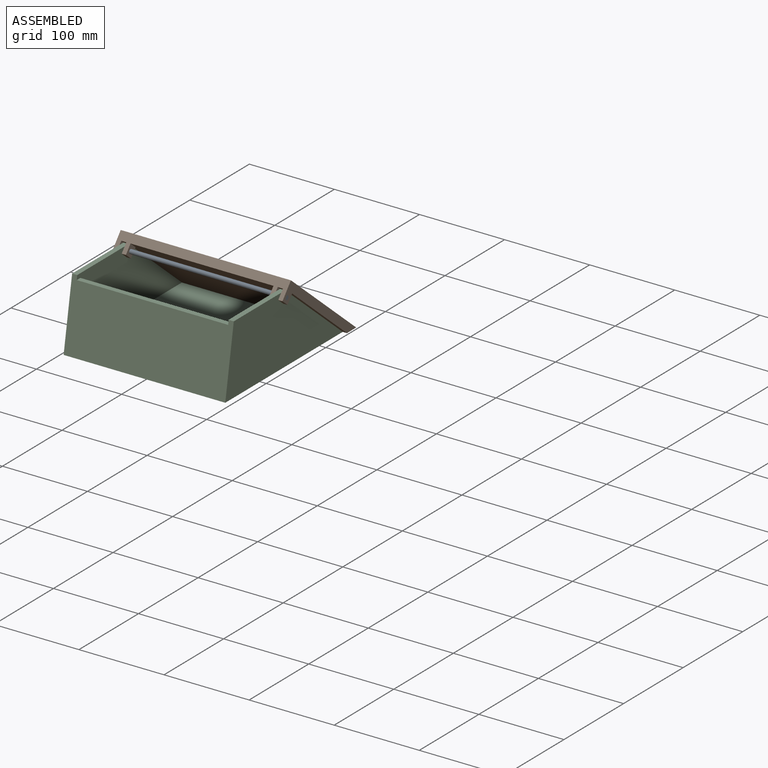
[diagram: assembled view]
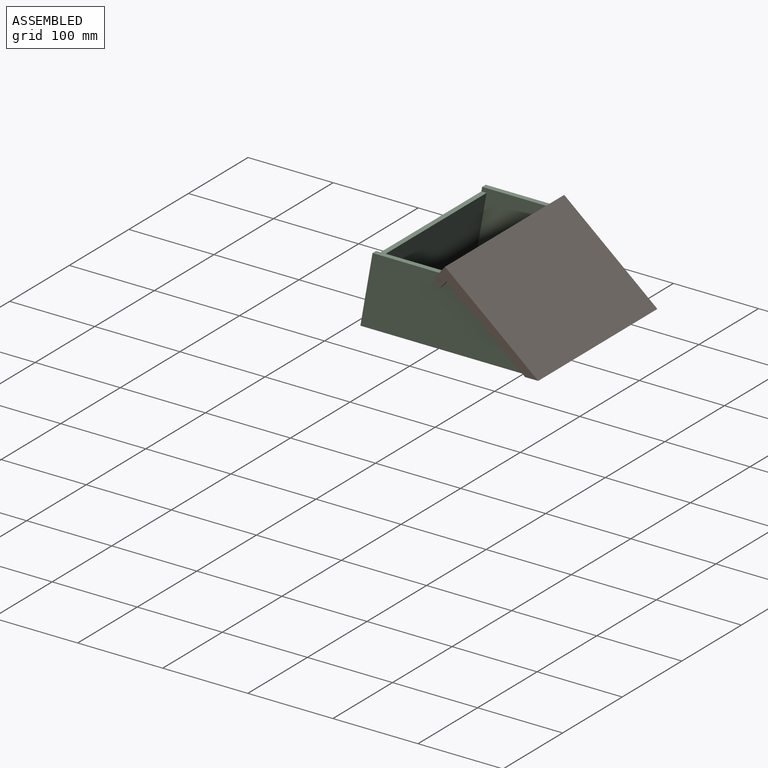
[diagram: assembled view, second angle]
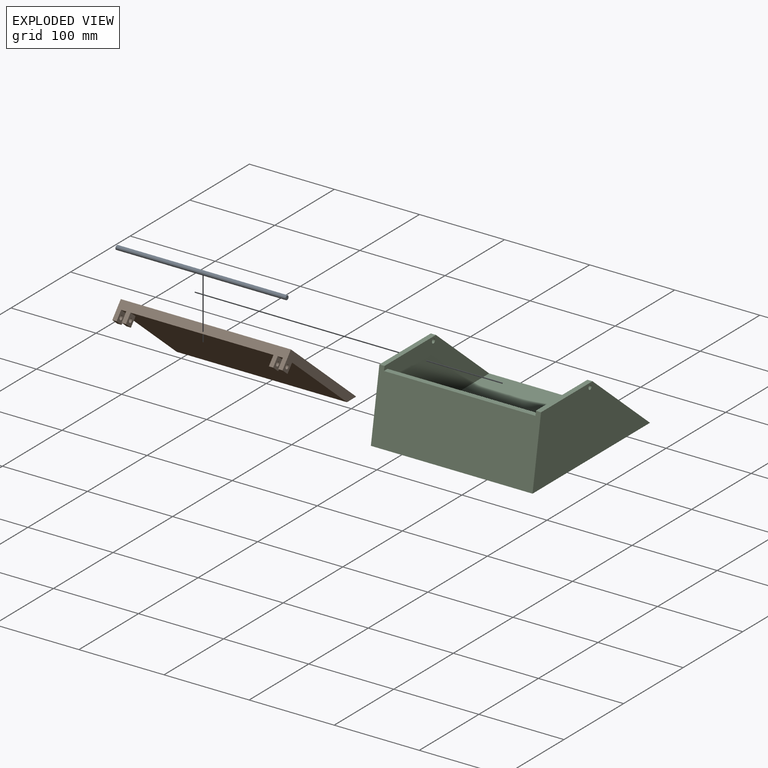
[diagram: exploded view]
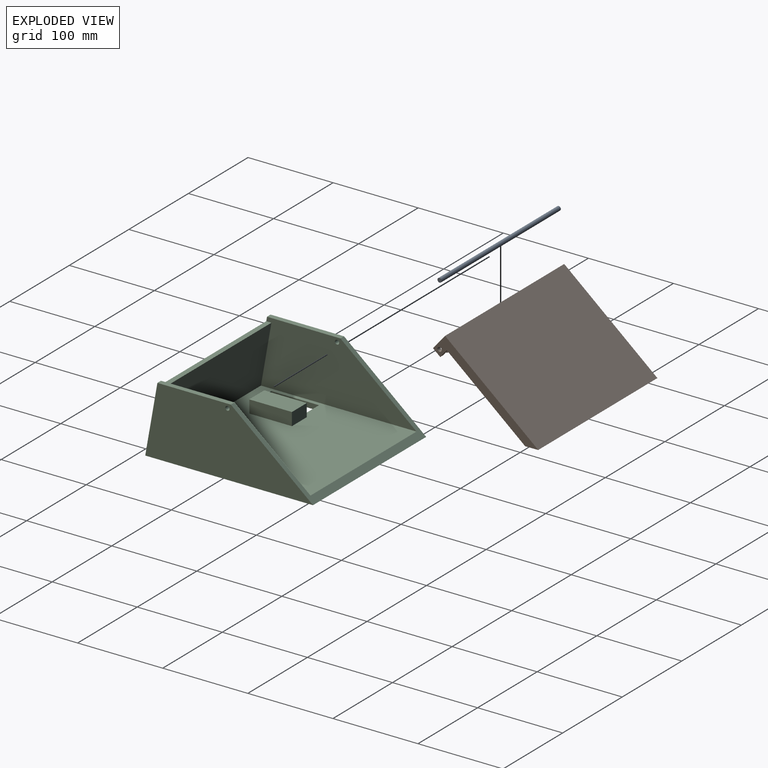
[diagram: exploded view, second angle]
ASSEMBLY  parts=3 mates=2
PART A: 3 faces, bbox 200x5x5 mm
  f0: plane 5x5mm, normal (1,0,0), area 19.6mm2, adj f1
  f1: cylinder r=2.5mm len=200mm, axis (-1,0,0), area 3141.6mm2, adj f0,f2
  f2: plane 5x5mm, normal (-1,0,0), area 19.6mm2, adj f1
PART B: 24 faces, bbox 200x123.7x92 mm
  f0: plane 9.19x7.71mm, normal (0,0.77,-0.64), area 60mm2, adj f6,f12,f14,f22
  f1: plane 8.43x7.07mm, normal (0,-0.64,-0.77), area 55mm2, adj f7,f10,f11,f23
  f2: plane 9.19x7.71mm, normal (0,0.77,-0.64), area 60mm2, adj f6,f17,f19,f21
  f3: plane 8.43x7.07mm, normal (0,-0.64,-0.77), area 55mm2, adj f7,f15,f16,f20
  f4: cylinder r=2.5mm len=5mm, axis (-1,0,0), area 78.5mm2, adj f10,f23
  f5: cylinder r=2.5mm len=5mm, axis (1,0,0), area 78.5mm2, adj f19,f21
  f6: plane 200x100.55mm, normal (0,-0.64,-0.77), area 26032.7mm2, adj f0,f2,f7,f8,f10,f11,f14,f15
  f7: plane 200x16.85mm, normal (0,-0.77,0.64), area 2240mm2, adj f1,f3,f6,f9,f10,f12,f14,f15
  f8: plane 200x15.4mm, normal (0,0.01,-1), area 3079.5mm2, adj f6,f9,f14,f19
  f9: plane 200x109.52mm, normal (0,0.64,0.77), area 28594.4mm2, adj f7,f8,f14,f19
  f10: plane 16.26x16.14mm, normal (-1,0,0), area 112.4mm2, adj f1,f4,f6,f7,f11
  f11: plane 9.19x7.71mm, normal (0,0.77,-0.64), area 60mm2, adj f1,f6,f10,f23
  f12: plane 8.43x7.07mm, normal (0,-0.64,-0.77), area 55mm2, adj f0,f7,f14,f22
  f13: cylinder r=2.5mm len=5mm, axis (-1,0,0), area 78.5mm2, adj f14,f22
  f14: plane 123.66x92.04mm, normal (1,0,0), area 1483.5mm2, adj f0,f6,f7,f8,f9,f12,f13
  f15: plane 16.26x16.14mm, normal (1,0,0), area 112.4mm2, adj f3,f6,f7,f16,f18
  f16: plane 9.19x7.71mm, normal (0,0.77,-0.64), area 60mm2, adj f3,f6,f15,f20
  f17: plane 8.43x7.07mm, normal (0,-0.64,-0.77), area 55mm2, adj f2,f7,f19,f21
  f18: cylinder r=2.5mm len=5mm, axis (1,0,0), area 78.5mm2, adj f15,f20
  f19: plane 123.66x92.04mm, normal (-1,0,0), area 1483.5mm2, adj f2,f5,f6,f7,f8,f9,f17
  f20: plane 16.26x16.14mm, normal (-1,0,0), area 112.4mm2, adj f3,f6,f7,f16,f18
  f21: plane 16.26x16.14mm, normal (1,0,0), area 112.4mm2, adj f2,f5,f6,f7,f17
  f22: plane 16.26x16.14mm, normal (-1,0,0), area 112.4mm2, adj f0,f6,f7,f12,f13
  f23: plane 16.26x16.14mm, normal (1,0,0), area 112.4mm2, adj f1,f4,f6,f7,f11
PART C: 30 faces, bbox 190x197.2x81 mm
  f0: plane 182.85x178mm, normal (0,0,1), area 26799.2mm2, adj f5,f7,f8,f9,f12,f13,f14,f15
  f1: plane 197.15x190mm, normal (0,0,-1), area 34210.6mm2, adj f3,f4,f5,f6,f12,f13,f14,f15
  f2: plane 178x6.09mm, normal (0,0,1), area 1084.5mm2, adj f3,f7,f8,f9
  f3: plane 190x81mm, normal (0,-0.98,0.17), area 14723.7mm2, adj f1,f2,f4,f6,f7,f9,f10,f11
  f4: plane 197.15x81mm, normal (1,0,0), area 11461.6mm2, adj f1,f3,f5,f11,f29
  f5: plane 190x96.53mm, normal (0,0.64,0.77), area 3173.7mm2, adj f0,f1,f4,f6,f7,f9,f10,f11
  f6: plane 197.15x81mm, normal (-1,0,0), area 11461.6mm2, adj f1,f3,f5,f10,f28
  f7: plane 182.85x75mm, normal (-1,0,0), area 9876.8mm2, adj f0,f2,f3,f5,f8,f11,f29
  f8: plane 178x70mm, normal (0,0.98,-0.17), area 12652.2mm2, adj f0,f2,f7,f9
  f9: plane 182.85x75mm, normal (1,0,0), area 9876.8mm2, adj f0,f2,f3,f5,f8,f10,f28
  f10: plane 86.34x6mm, normal (0,0,1), area 518mm2, adj f3,f5,f6,f9
  f11: plane 86.34x6mm, normal (0,0,1), area 518mm2, adj f3,f4,f5,f7
  f12: plane 29x6mm, normal (0,-1,0), area 174mm2, adj f0,f1,f13,f15
  f13: plane 56x6mm, normal (1,0,0), area 336mm2, adj f0,f1,f12,f14
  f14: plane 29x6mm, normal (0,1,0), area 174mm2, adj f0,f1,f13,f15
  f15: plane 62x21mm, normal (-1,0,0), area 1086mm2, adj f0,f1,f12,f14,f20,f22,f23
  f16: plane 29x6mm, normal (0,-1,0), area 174mm2, adj f0,f1,f17,f19
  f17: plane 62x21mm, normal (1,0,0), area 1086mm2, adj f0,f1,f16,f18,f24,f26,f27
  f18: plane 29x6mm, normal (0,1,0), area 174mm2, adj f0,f1,f17,f19
  f19: plane 56x6mm, normal (-1,0,0), area 336mm2, adj f0,f1,f16,f18
  f20: plane 25x15mm, normal (0,-1,0), area 375mm2, adj f0,f15,f21,f23
  f21: plane 50x15mm, normal (1,0,0), area 750mm2, adj f0,f20,f22,f23
  f22: plane 25x15mm, normal (0,1,0), area 375mm2, adj f0,f15,f21,f23
  f23: plane 50x25mm, normal (0,0,1), area 1250mm2, adj f15,f20,f21,f22
  f24: plane 25x15mm, normal (0,1,0), area 375mm2, adj f0,f17,f25,f27
  f25: plane 50x15mm, normal (-1,0,0), area 750mm2, adj f0,f24,f26,f27
  f26: plane 25x15mm, normal (0,-1,0), area 375mm2, adj f0,f17,f25,f27
  f27: plane 50x25mm, normal (0,0,1), area 1250mm2, adj f17,f24,f25,f26
  f28: cylinder r=2.5mm len=6mm, axis (1,0,0), area 94.2mm2, adj f6,f9
  f29: cylinder r=2.5mm len=6mm, axis (1,0,0), area 94.2mm2, adj f4,f7
PLACE A rot(axis=(-0.97,-0.23,-0.04),0deg) t=(-6.14,-0.6,-13.38)mm
PLACE B t=(-6.14,-0.6,-13.38)mm
PLACE C t=(-6.14,-0.6,-13.38)mm
MATE revolute B.f4 <-> C.f28  axis (1,0,0) through (-101.14,0.97,59.62)mm
MATE fastened A.f1 <-> B.f4  axis (-1,0,0) through (-106.14,0.97,59.62)mm
